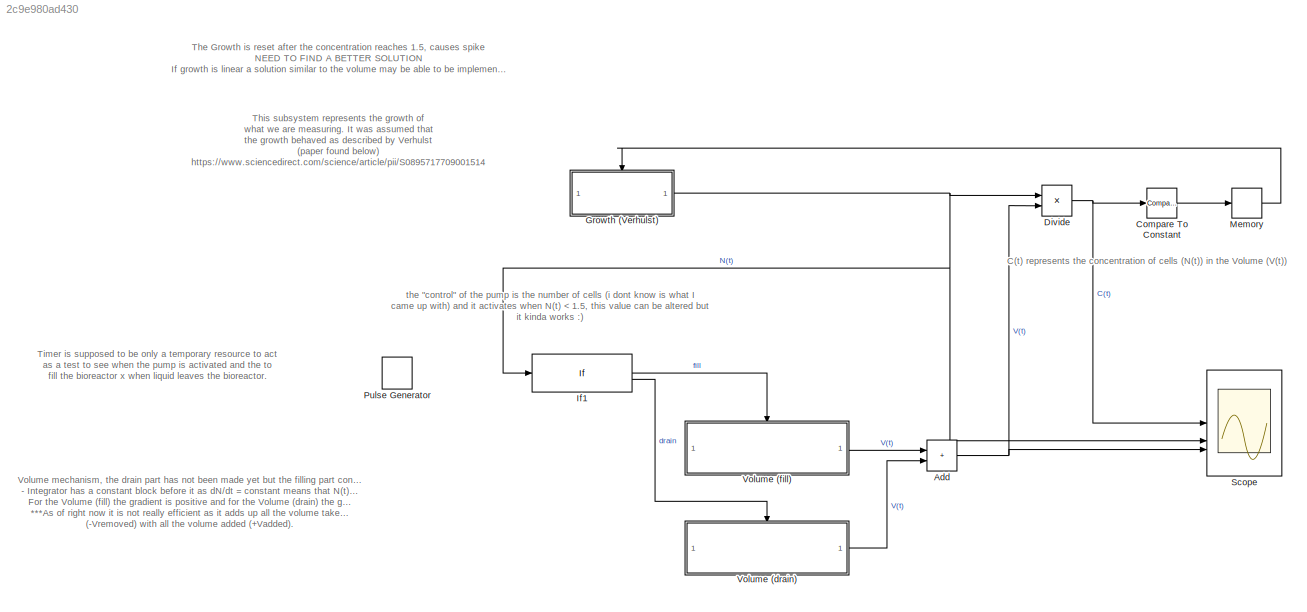
MODEL slx_2c9e980ad430
KIND model
CONFIG AbsTol = auto
CONFIG EnableMultiTasking = off
CONFIG FixedStep = auto
CONFIG MaxStep = auto
CONFIG MinStep = auto
CONFIG RelTol = 1e-3
CONFIG SampleTimeConstraint = Unconstrained
CONFIG SolverName = VariableStepAuto
CONFIG StartTime = 0.0
CONFIG StopTime = 200
WORKSPACE source: mxarray member
WORKSPACE K: Simulink.Parameter (value not decoded)
WORKSPACE r: Simulink.Parameter (value not decoded)
BLOCK [Sum] Add
  IconShape = rectangular
BLOCK [Reference] Compare To Constant  REF=simulink/Logic and Bit
Operations/Compare
To Constant
  SourceBlock = simulink/Logic and Bit\nOperations/Compare\nTo Constant
  SourceType = Compare To Constant
BLOCK [Product] Divide
  Inputs = */
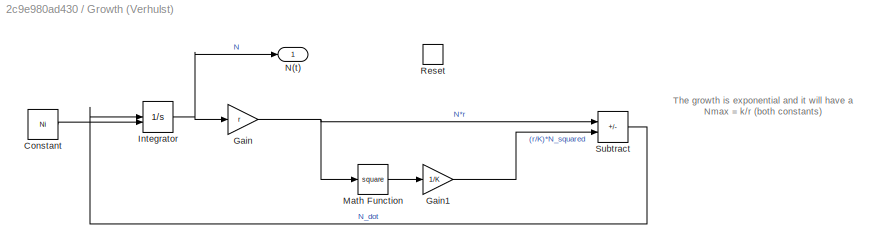
BLOCK [SubSystem] Growth (Verhulst)
BLOCK [Constant] Growth (Verhulst)/Constant
  Value = Ni
BLOCK [Gain] Growth (Verhulst)/Gain
  Gain = r
BLOCK [Gain] Growth (Verhulst)/Gain1
  Gain = 1/K
BLOCK [Integrator] Growth (Verhulst)/Integrator
  InitialCondition = Ni
  InitialConditionSource = external
BLOCK [Math] Growth (Verhulst)/Math Function
  Operator = square
BLOCK [Outport] Growth (Verhulst)/N(t)
BLOCK [ResetPort] Growth (Verhulst)/Reset
  DisableCoverage = on
BLOCK [Sum] Growth (Verhulst)/Subtract
  IconShape = rectangular
  Inputs = +-
BLOCK [If] If1
  IfExpression = u1 < 1.5
BLOCK [Memory] Memory
BLOCK [DiscretePulseGenerator] Pulse Generator
  Period = 30
  PulseType = Time based
  PulseWidth = 50
BLOCK [Scope] Scope
  Floating = off
  NumInputPorts = 3
  ScopeSpecificationString = Simulink.scopes.TimeScopeBlockCfg('CurrentConfiguration', extmgr.ConfigurationSet(extmgr.Configuration('Core','General UI',true),extmgr.Configuration('Core','Source UI',true),extmgr.Configuration('Sources','WiredSimulink',true,'DataLoggingVariableName','ScopeData2'),extmgr.Configuration('Visuals','Time Domain',true,'SerializedDisplays',{struct('MinYLimReal','-2.84734','MaxYLimReal','7.21659','YLab...<+1423ch>
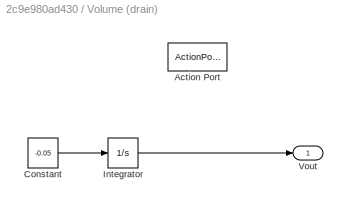
BLOCK [SubSystem] Volume (drain)
BLOCK [ActionPort] Volume (drain)/Action Port
  ActionPortLabel = else
BLOCK [Constant] Volume (drain)/Constant
  Value = -0.05
BLOCK [Integrator] Volume (drain)/Integrator
  InitialCondition = 0.2
BLOCK [Outport] Volume (drain)/Vout
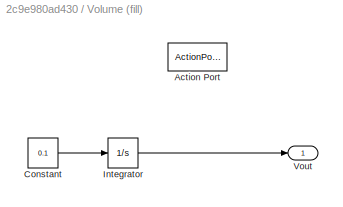
BLOCK [SubSystem] Volume (fill)
BLOCK [ActionPort] Volume (fill)/Action Port
  ActionPortLabel = if(u1 < 1.5)
BLOCK [Constant] Volume (fill)/Constant
  Value = 0.1
BLOCK [Integrator] Volume (fill)/Integrator
  InitialCondition = 0.5
BLOCK [Outport] Volume (fill)/Vout
ANNOTATION (root): The Growth is reset after the concentration reaches 1.5, causes spike NEED TO FIND A BETTER SOLUTION If growth is linear a solution similar to the volume may be able to be implemented (assuming that the concentration is equally distributed
ANNOTATION (root): This subsystem represents the growth of what we are measuring. It was assumed that the growth behaved as described by Verhulst (paper found below) https://www.sciencedirect.com/science/article/pii/S0895717709001514
ANNOTATION (root): Volume mechanism, the drain part has not been made yet but the filling part consists of adding at a constant rate (volume subsystem) - "Volume" or nutrients - Integrator has a constant block before it as dN/dt = constant means that N(t) = k*t For the Volume (fill) the gradient is positive and for the Volume (drain) the gradient is negative. ***As of right now it is not really efficient as it adds ...<+77ch>
ANNOTATION (root): Timer is supposed to be only a temporary resource to act as a test to see when the pump is activated and the to fill the bioreactor x when liquid leaves the bioreactor.
ANNOTATION (root): C(t) represents the concentration of cells (N(t)) in the Volume (V(t))
ANNOTATION (root): the "control" of the pump is the number of cells (i dont know is what I came up with) and it activates when N(t) < 1.5, this value can be altered but it kinda works :)
ANNOTATION Growth (Verhulst): The growth is exponential and it will have a Nmax = k/r (both constants)
NET Add:1 -> Divide:2, Scope:3
LINE Compare To Constant:1 -> Memory:1
NET Divide:1 -> Compare To Constant:1, Scope:1
LINE Growth (Verhulst)/Constant:1 -> Growth (Verhulst)/Integrator:2
LINE Growth (Verhulst)/Gain1:1 -> Growth (Verhulst)/Subtract:2
NET Growth (Verhulst)/Gain:1 -> Growth (Verhulst)/Math Function:1, Growth (Verhulst)/Subtract:1
NET Growth (Verhulst)/Integrator:1 -> Growth (Verhulst)/Gain:1, Growth (Verhulst)/N(t):1
LINE Growth (Verhulst)/Math Function:1 -> Growth (Verhulst)/Gain1:1
LINE Growth (Verhulst)/Subtract:1 -> Growth (Verhulst)/Integrator:1
NET Growth (Verhulst):1 -> Divide:1, If1:1, Scope:2
LINE If1:1 -> Volume (fill):ifaction
LINE If1:2 -> Volume (drain):ifaction
LINE Memory:1 -> Growth (Verhulst):Reset
LINE Volume (drain)/Constant:1 -> Volume (drain)/Integrator:1
LINE Volume (drain)/Integrator:1 -> Volume (drain)/Vout:1
LINE Volume (drain):1 -> Add:2
LINE Volume (fill)/Constant:1 -> Volume (fill)/Integrator:1
LINE Volume (fill)/Integrator:1 -> Volume (fill)/Vout:1
LINE Volume (fill):1 -> Add:1
note: NET lines group one-source signal fan-out (src -> all destinations, sorted); 1:1 wires keep LINE
